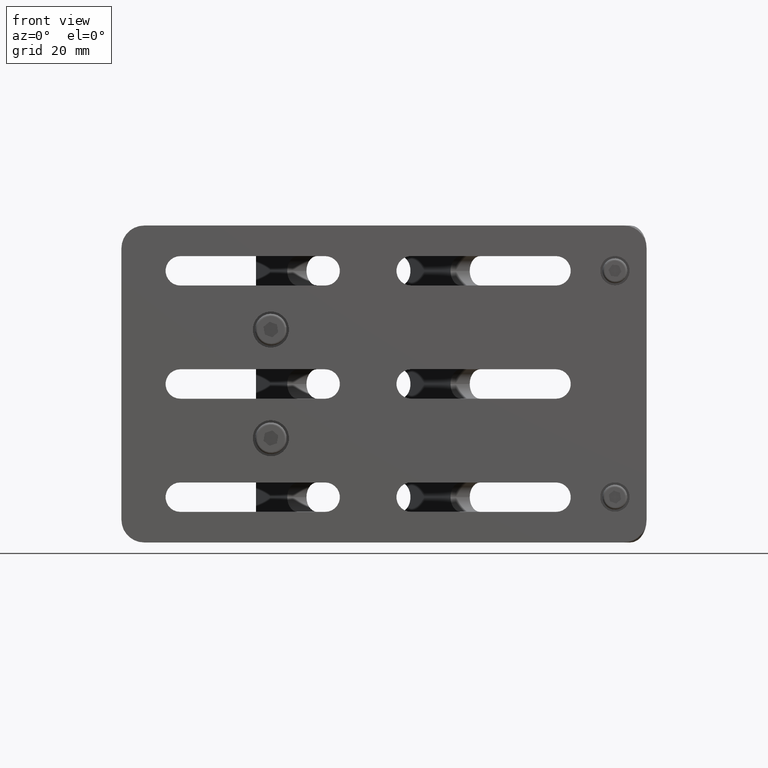
[diagram: clean part render]
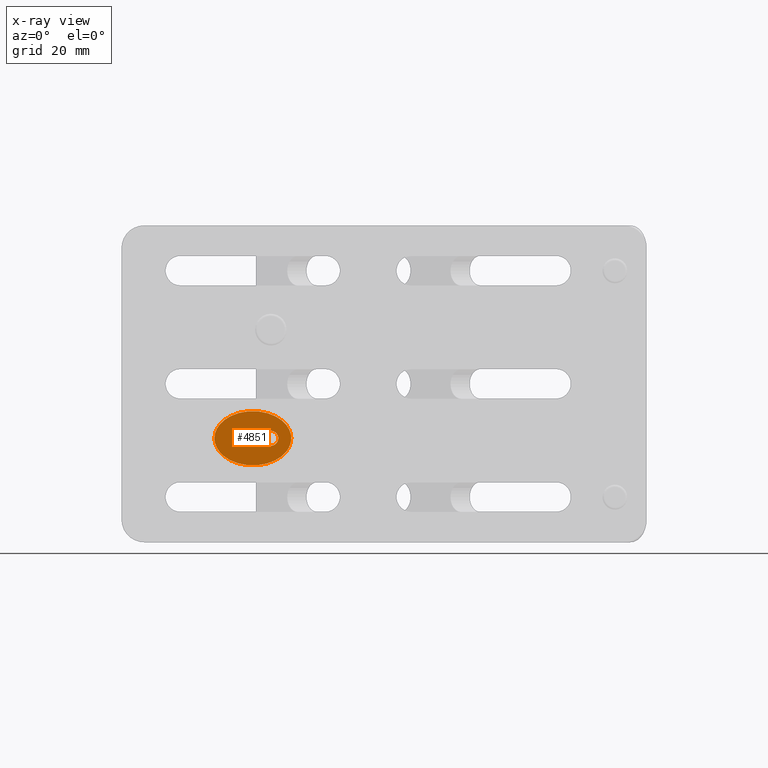
[diagram: x-ray — body ghosted, one internal face saturated and labeled with its STEP entity id]
A machine part, front view, then the same camera in x-ray: the body is ghosted and one INTERNAL B-rep face — a face not visible from any outside direction — is saturated and labeled: STEP entity #4851.
In plain terms, the highlighted planar face has unit normal (0, 1, -0).
Its self-contained STEP definition (entity closure, byte-faithful):
#20 = EDGE_CURVE ( 'NONE', #1593, #2082, #3235, .T. ) ;
#481 = DIRECTION ( 'NONE',  ( -4.551914400963072400E-015, -1.000000000000000000, 3.475292782335558400E-015 ) ) ;
#663 = DIRECTION ( 'NONE',  ( -1.000000000000000000, 6.570922257487939000E-015, -4.205390244792280500E-015 ) ) ;
#710 = AXIS2_PLACEMENT_3D ( 'NONE', #6712, #6187, #663 ) ;
#1259 = CARTESIAN_POINT ( 'NONE',  ( -16.98885271170743400, 3.000000000000148300, -12.00000000000015600 ) ) ;
#1499 = CARTESIAN_POINT ( 'NONE',  ( -33.95941546018466500, 3.000000000000224700, -12.00000000000023600 ) ) ;
#1535 = CIRCLE ( 'NONE', #710, 1.649999999999991700 ) ;
#1593 = VERTEX_POINT ( 'NONE', #1259 ) ;
#1652 = AXIS2_PLACEMENT_3D ( 'NONE', #3719, #481, #4275 ) ;
#2082 = VERTEX_POINT ( 'NONE', #1499 ) ;
#2332 = CARTESIAN_POINT ( 'NONE',  ( -23.14885271170755100, 3.000000000000096800, -12.00000000000014200 ) ) ;
#2583 = ORIENTED_EDGE ( 'NONE', *, *, #7107, .F. ) ;
#2691 = VERTEX_POINT ( 'NONE', #2332 ) ;
#2718 = CARTESIAN_POINT ( 'NONE',  ( -19.84885271170756800, 3.000000000000078600, -12.00000000000014400 ) ) ;
#2777 = ORIENTED_EDGE ( 'NONE', *, *, #6576, .F. ) ;
#3235 =( BOUNDED_CURVE ( )  B_SPLINE_CURVE ( 3, ( #6230, #6773, #4590, #3494 ),
 .UNSPECIFIED., .F., .T. ) 
 B_SPLINE_CURVE_WITH_KNOTS ( ( 4, 4 ),
 ( 7.686178894225744800E-015, 3.141592653589785100 ),
 .UNSPECIFIED. ) 
 CURVE ( )  GEOMETRIC_REPRESENTATION_ITEM ( )  RATIONAL_B_SPLINE_CURVE ( ( 1.000000000000000000, 0.3333333333333385900, 0.3333333333333385900, 1.000000000000000000 ) ) 
 REPRESENTATION_ITEM ( '' )  );
#3243 = CARTESIAN_POINT ( 'NONE',  ( -16.98885271170765100, 3.000000000000158100, 1.994931997373327700E-013 ) ) ;
#3494 = CARTESIAN_POINT ( 'NONE',  ( -33.95941546018466500, 3.000000000000224700, -12.00000000000023600 ) ) ;
#3719 = CARTESIAN_POINT ( 'NONE',  ( -21.49885271170756000, 3.000000000000086200, -12.00000000000013500 ) ) ;
#3738 = VERTEX_POINT ( 'NONE', #2718 ) ;
#3866 = EDGE_LOOP ( 'NONE', ( #7007, #2777 ) ) ;
#3870 = FACE_OUTER_BOUND ( 'NONE', #6643, .T. ) ;
#4275 = DIRECTION ( 'NONE',  ( -1.000000000000000000, 6.570922257487939000E-015, -4.205390244792280500E-015 ) ) ;
#4519 = CARTESIAN_POINT ( 'NONE',  ( -16.98885271170825500, 3.000000000000197200, -4.500000000000090600 ) ) ;
#4590 = CARTESIAN_POINT ( 'NONE',  ( -33.95941546018450900, 3.000000000000193600, -24.00000000000025900 ) ) ;
#4753 = CARTESIAN_POINT ( 'NONE',  ( -33.95941546018466500, 3.000000000000224700, -12.00000000000023600 ) ) ;
#4849 = CARTESIAN_POINT ( 'NONE',  ( -16.98885271170743400, 3.000000000000148300, -12.00000000000015600 ) ) ;
#4851 = ADVANCED_FACE ( 'NONE', ( #6629, #3870 ), #5542, .F. ) ;
#5114 = ORIENTED_EDGE ( 'NONE', *, *, #20, .F. ) ;
#5160 = DIRECTION ( 'NONE',  ( 7.049916206369741700E-015, 1.000000000000000000, -3.475292782335546200E-015 ) ) ;
#5542 = PLANE ( 'NONE',  #5913 ) ;
#5612 = DIRECTION ( 'NONE',  ( 1.000000000000000000, -7.049916206369725900E-015, 4.617192728622112300E-015 ) ) ;
#5830 = EDGE_CURVE ( 'NONE', #2691, #3738, #1535, .T. ) ;
#5893 = CARTESIAN_POINT ( 'NONE',  ( -33.95941546018490000, 3.000000000000277600, 7.112366251504909100E-014 ) ) ;
#5913 = AXIS2_PLACEMENT_3D ( 'NONE', #4519, #5160, #5612 ) ;
#6090 =( BOUNDED_CURVE ( )  B_SPLINE_CURVE ( 3, ( #4753, #5893, #3243, #4849 ),
 .UNSPECIFIED., .F., .T. ) 
 B_SPLINE_CURVE_WITH_KNOTS ( ( 4, 4 ),
 ( 3.141592653589785100, 6.283185307179586200 ),
 .UNSPECIFIED. ) 
 CURVE ( )  GEOMETRIC_REPRESENTATION_ITEM ( )  RATIONAL_B_SPLINE_CURVE ( ( 1.000000000000000000, 0.3333333333333307100, 0.3333333333333307100, 1.000000000000000000 ) ) 
 REPRESENTATION_ITEM ( '' )  );
#6187 = DIRECTION ( 'NONE',  ( -4.551914400963072400E-015, -1.000000000000000000, 3.475292782335558400E-015 ) ) ;
#6230 = CARTESIAN_POINT ( 'NONE',  ( -16.98885271170743400, 3.000000000000148300, -12.00000000000015600 ) ) ;
#6576 = EDGE_CURVE ( 'NONE', #3738, #2691, #6727, .T. ) ;
#6629 = FACE_BOUND ( 'NONE', #3866, .T. ) ;
#6643 = EDGE_LOOP ( 'NONE', ( #5114, #2583 ) ) ;
#6712 = CARTESIAN_POINT ( 'NONE',  ( -21.49885271170756000, 3.000000000000086200, -12.00000000000013500 ) ) ;
#6727 = CIRCLE ( 'NONE', #1652, 1.649999999999991700 ) ;
#6773 = CARTESIAN_POINT ( 'NONE',  ( -16.98885271170767200, 3.000000000000073700, -24.00000000000017400 ) ) ;
#7007 = ORIENTED_EDGE ( 'NONE', *, *, #5830, .F. ) ;
#7107 = EDGE_CURVE ( 'NONE', #2082, #1593, #6090, .T. ) ;